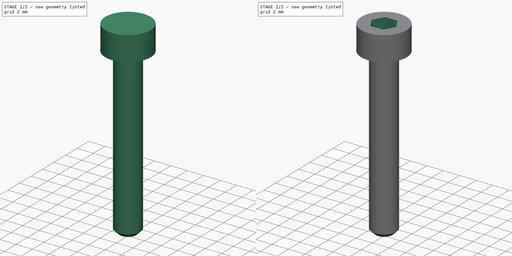
[diagram: build sequence overview — one tinted view per stage of 2, left to right]
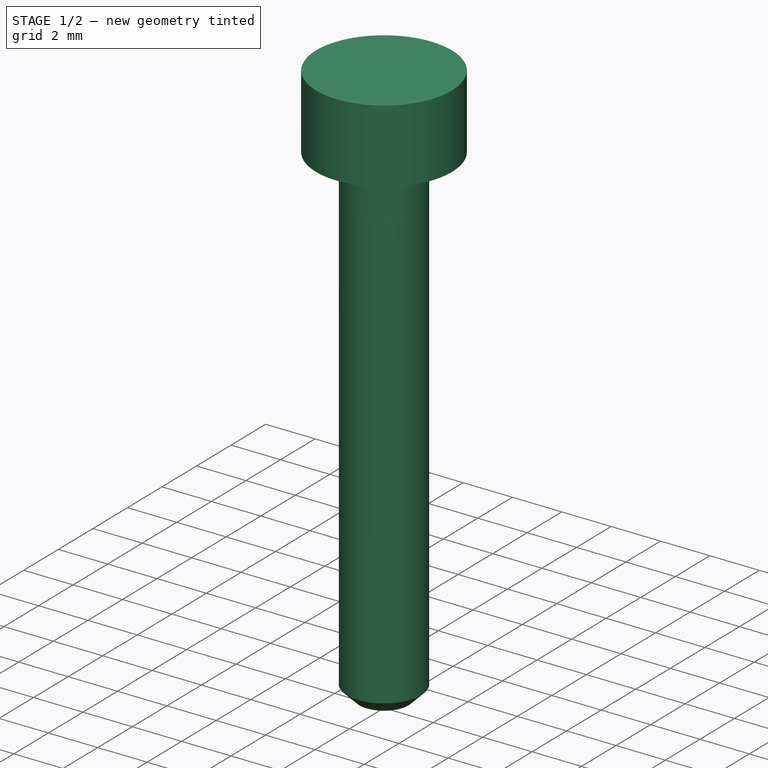
[diagram: stage 1 of 2 — iso view after this stage's code; geometry added in this stage tinted green]
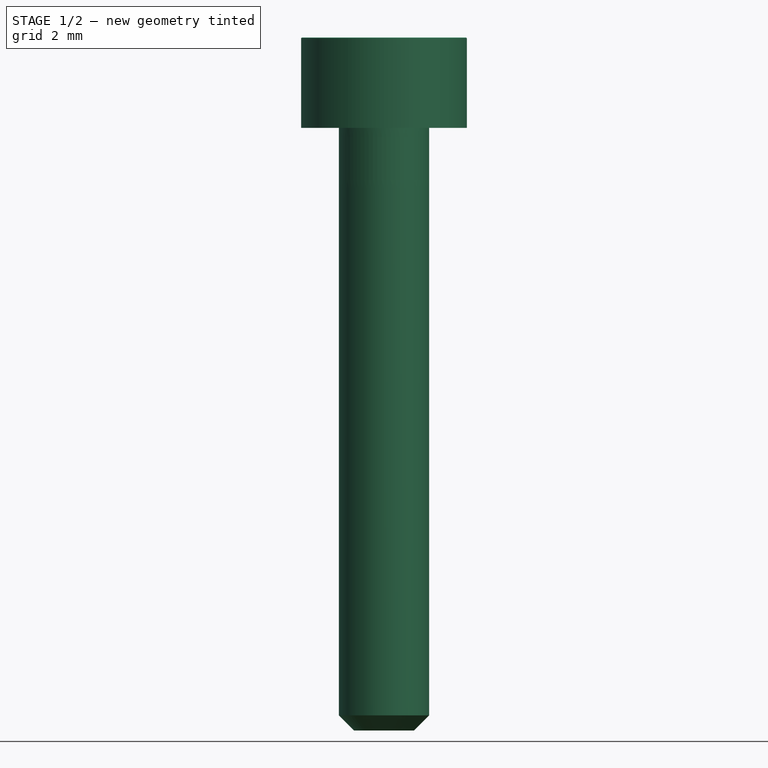
[diagram: stage 1 of 2 — front view after this stage's code; geometry added in this stage tinted green]
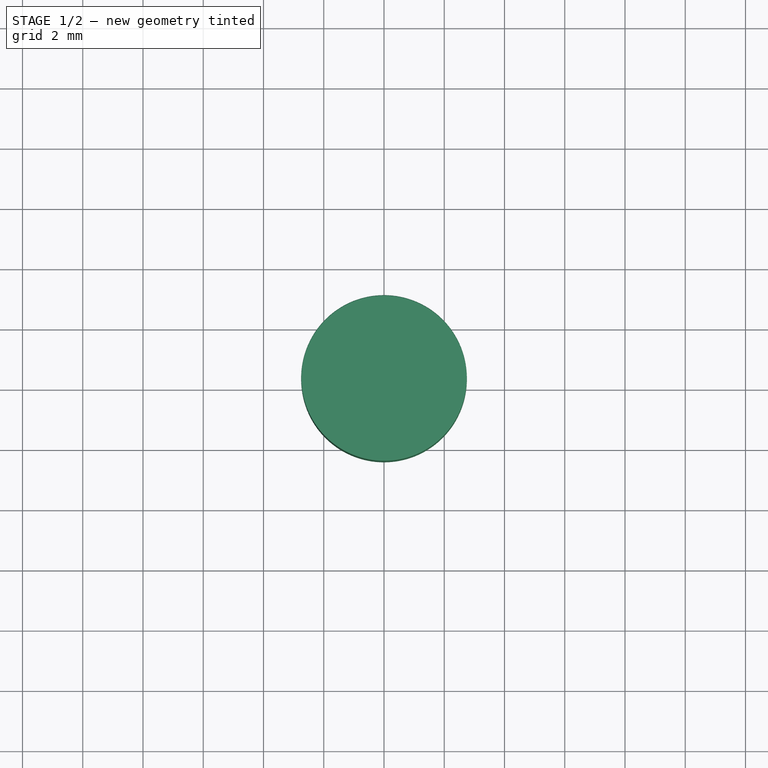
[diagram: stage 1 of 2 — top view after this stage's code; geometry added in this stage tinted green]
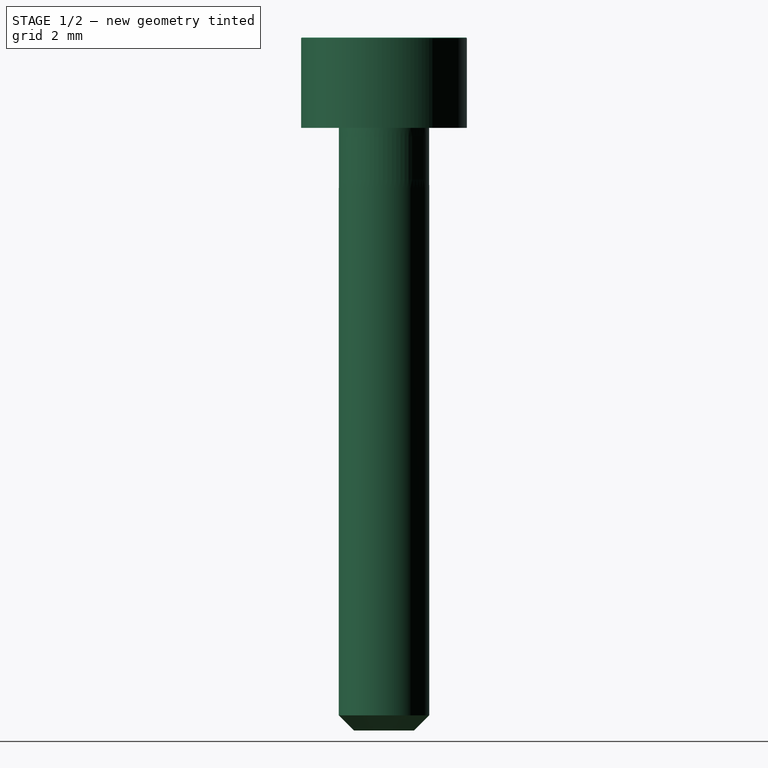
[diagram: stage 1 of 2 — right view after this stage's code; geometry added in this stage tinted green]
FCSTD DOCUMENT  (FreeCAD 0.15R4671 (Git))
Label: Screw M3x20 ISO4762 8,8 A2K
License: All rights reserved
LicenseURL: http://en.wikipedia.org/wiki/All_rights_reserved
objects: Sketcher::SketchObject×2, Part::Revolution×1, PartDesign::Pocket×1
note: 5 computed .brp shape members not serialized (recipe doc carries the construction recipe); baked Part::Feature solids carry a one-line shape summary decoded from their .brp

FEATURE [Sketcher::SketchObject] Sketch
  Placement = pos=(0,0,0) rot=(0.57735,0.57735,0.57735;2.0944rad)
  sketch-geometry (9):
    g0: LineSegment StartX=1.499 StartY=0 StartZ=0 EndX=2.75 EndY=0 EndZ=0
    g1: LineSegment StartX=2.75 StartY=0 StartZ=0 EndX=2.75 EndY=2.97229 EndZ=0
    g2: LineSegment StartX=2.72229 StartY=3 StartZ=0 EndX=0 EndY=3 EndZ=0
    g3: LineSegment StartX=1.499 StartY=0 StartZ=0 EndX=1.5 EndY=-2 EndZ=0
    g4: LineSegment StartX=1.5 StartY=-2 StartZ=0 EndX=1.5 EndY=-19.5 EndZ=0
    g5: LineSegment StartX=1.5 StartY=-19.5 StartZ=0 EndX=1 EndY=-20 EndZ=0
    g6: LineSegment StartX=1 StartY=-20 StartZ=0 EndX=0 EndY=-20 EndZ=0
    g7: LineSegment StartX=0 StartY=-20 StartZ=0 EndX=0 EndY=3 EndZ=0
    g8: ArcOfCircle CenterX=2.72229 CenterY=2.97229 CenterZ=0 NormalX=0 NormalY=0 NormalZ=1 Radius=0.02771 StartAngle=0 EndAngle=1.5708
  constraints (26):
    c: PointOnObject(g0,g-1)
    c: Horizontal(g0)
    c: Coincident(g1,g0)
    c: Vertical(g1)
    c: Horizontal(g2)
    c: Coincident(g3,g0)
    c: Coincident(g4,g3)
    c: Vertical(g4)
    c: Coincident(g5,g4)
    c: Coincident(g6,g5)
    c: Horizontal(g6)
    c: Coincident(g7,g6)
    c: Coincident(g7,g2)
    c: Vertical(g7)
    c: Tangent(g1,g8) = -1.5708
    c: Tangent(g2,g8) = -1.5708
    c: DistanceY(g5) = -0.5
    c: DistanceX(g5) = -0.5
    c: DistanceY(g5,g3) = 18
    c: DistanceY(g5,g0) = 20
    c: DistanceY(g0,g2) = 3
    c: DistanceX(g2,g0) = 2.75
    c: DistanceX(g6,g4) = 1.5
    c: DistanceX(g3,g0) = -0.001
    c: PointOnObject(g-1,g7)
    c: Radius(g8) = 0.02771
FEATURE [Part::Revolution] Revolve
  Angle = 360
  Axis = (0,0,1)
  Base = (0,0,0)
  Solid = true
  Source = -> Sketch
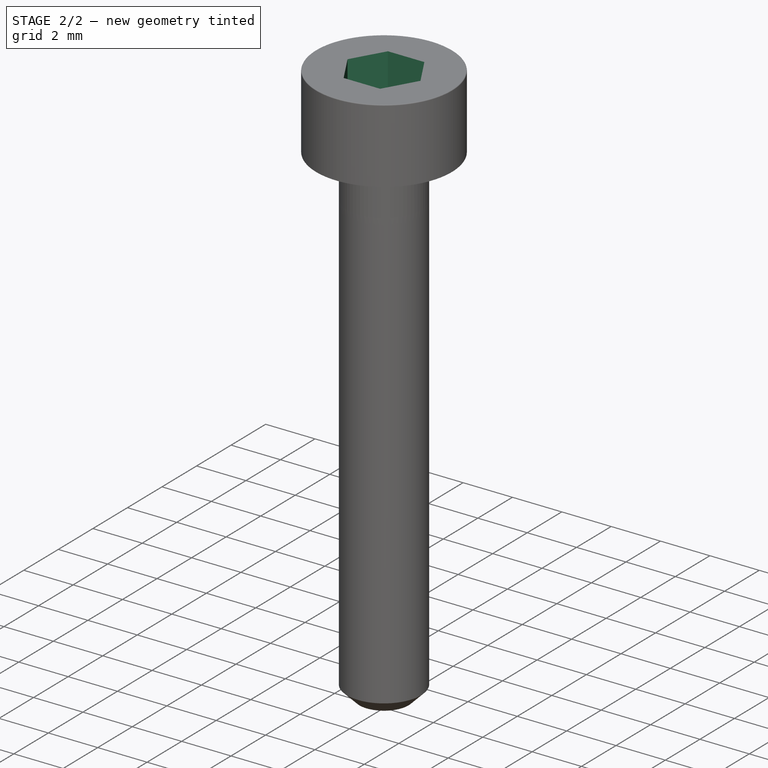
[diagram: stage 2 of 2 — iso view after this stage's code; geometry added in this stage tinted green]
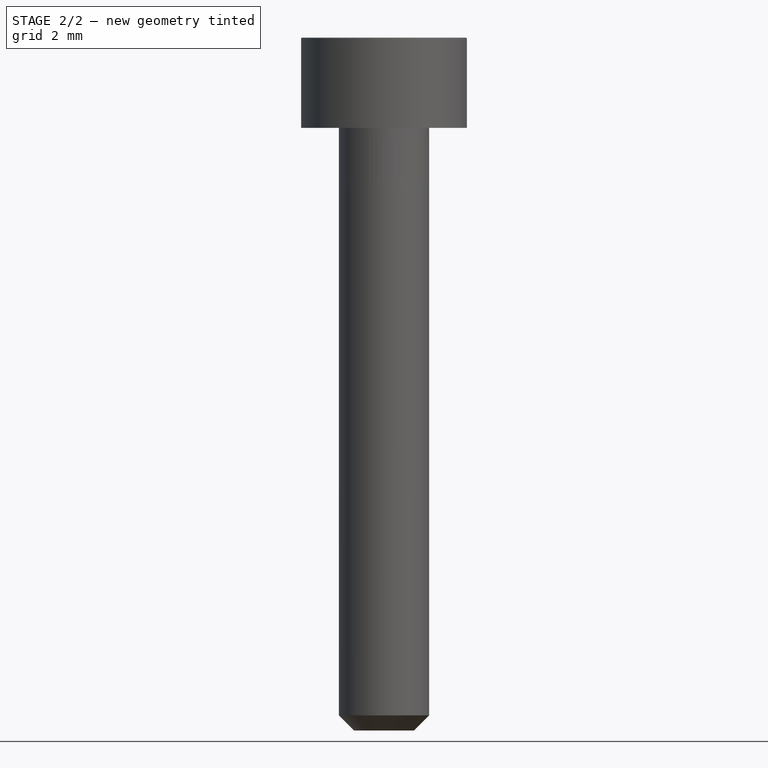
[diagram: stage 2 of 2 — front view after this stage's code; geometry added in this stage tinted green]
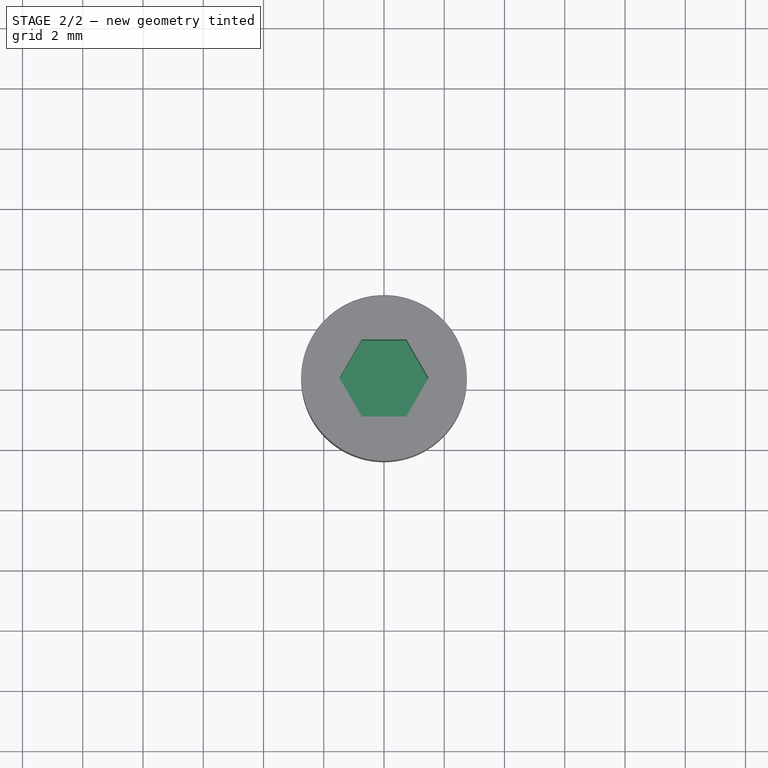
[diagram: stage 2 of 2 — top view after this stage's code; geometry added in this stage tinted green]
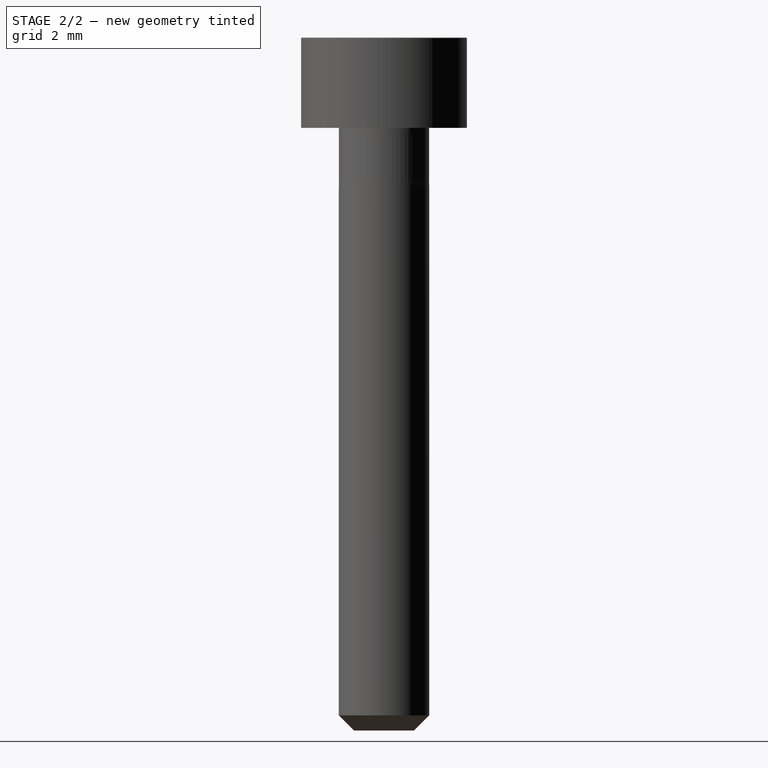
[diagram: stage 2 of 2 — right view after this stage's code; geometry added in this stage tinted green]
FEATURE [Sketcher::SketchObject] Sketch001
  Placement = pos=(0,0,3) rot=(0,0,1;0rad)
  Support = -> Revolve [Face5]
  sketch-geometry (7):
    g0: LineSegment StartX=1.47802 StartY=0 StartZ=0 EndX=0.739008 EndY=1.28 EndZ=0
    g1: LineSegment StartX=0.739008 StartY=1.28 StartZ=0 EndX=-0.739008 EndY=1.28 EndZ=0
    g2: LineSegment StartX=-0.739008 StartY=1.28 StartZ=0 EndX=-1.47802 EndY=0 EndZ=0
    g3: LineSegment StartX=-1.47802 StartY=0 StartZ=0 EndX=-0.739008 EndY=-1.28 EndZ=0
    g4: LineSegment StartX=-0.739008 StartY=-1.28 StartZ=0 EndX=0.739008 EndY=-1.28 EndZ=0
    g5: LineSegment StartX=0.739008 StartY=-1.28 StartZ=0 EndX=1.47802 EndY=0 EndZ=0
    g6: Circle [constr] CenterX=0 CenterY=0 CenterZ=0 NormalX=0 NormalY=0 NormalZ=1 Radius=1.47802
  constraints (16):
    c: Coincident(g0,g1)
    c: Coincident(g1,g2)
    c: Coincident(g2,g3)
    c: Coincident(g3,g4)
    c: Coincident(g4,g5)
    c: Coincident(g5,g0)
    c: Equal(g0, g1-g5) x5
    c: PointOnObject(g0,g6)
    c: PointOnObject(g1,g6)
    c: PointOnObject(g2,g6)
    c: PointOnObject(g3,g6)
    c: PointOnObject(g4,g6)
    c: PointOnObject(g5,g6)
    c: Horizontal(g4)
    c: DistanceY(g4,g0) = 2.56
    c: Coincident(g6,g-1)
FEATURE [PartDesign::Pocket] Pocket  label="Screw M3x20 ISO4762 8,8 A2K"
  Length = 2.56
  Sketch = -> Sketch001
  Type = 0
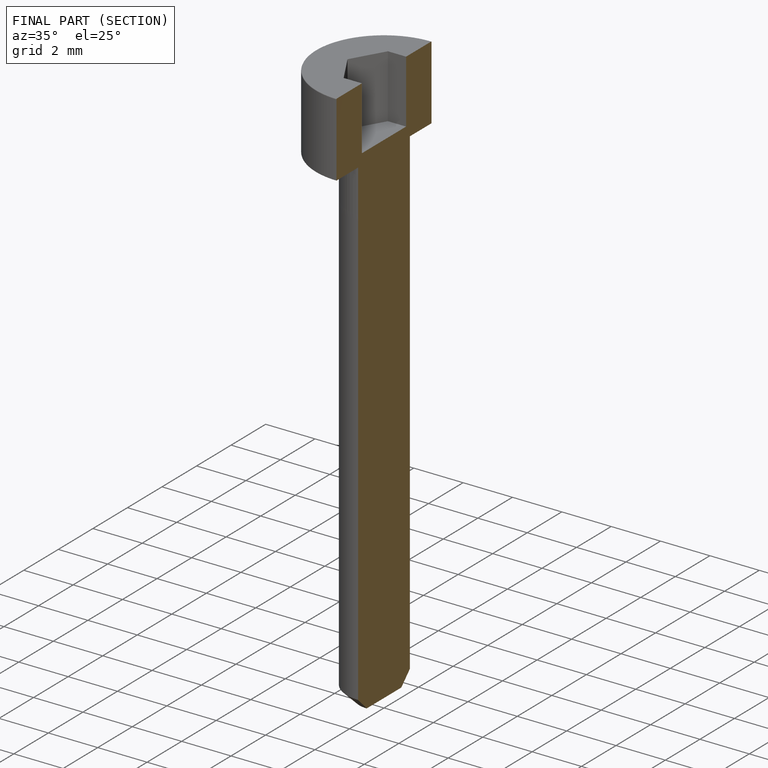
[diagram: finished part — half-section view (interior)]
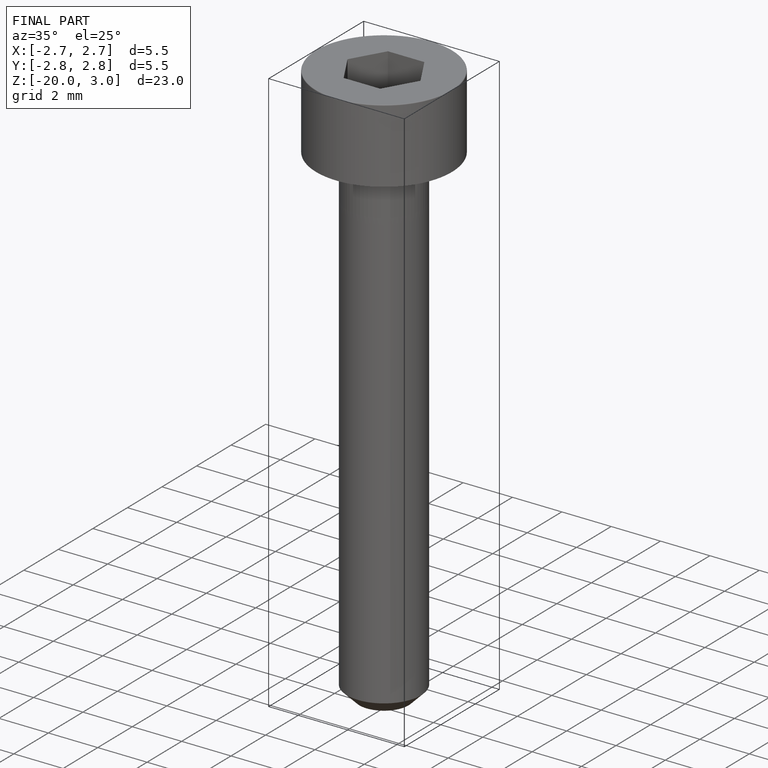
[diagram: finished part — iso view with bounding-box wireframe]
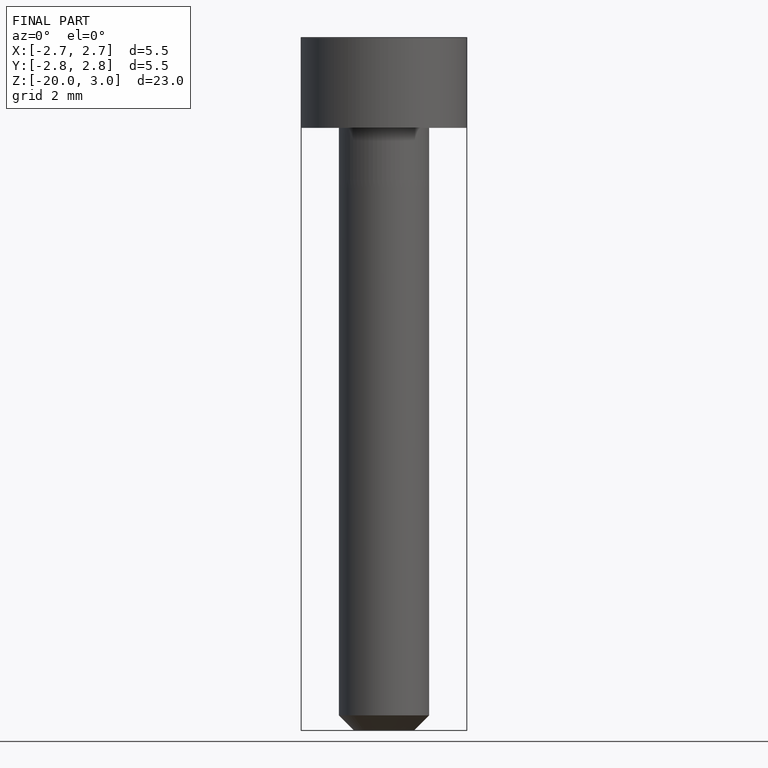
[diagram: finished part — front view with bounding-box wireframe]
